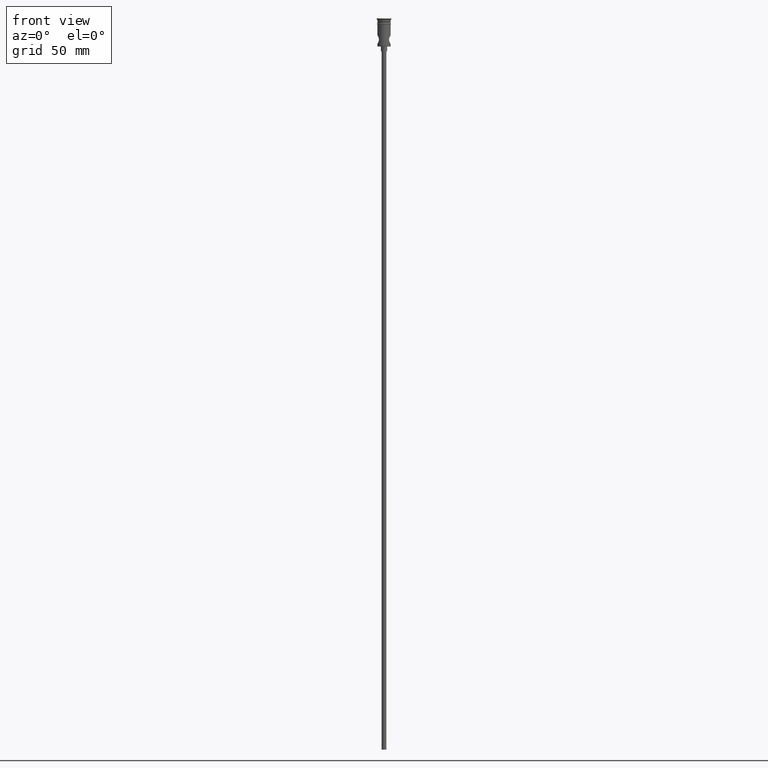
[diagram: clean part render]
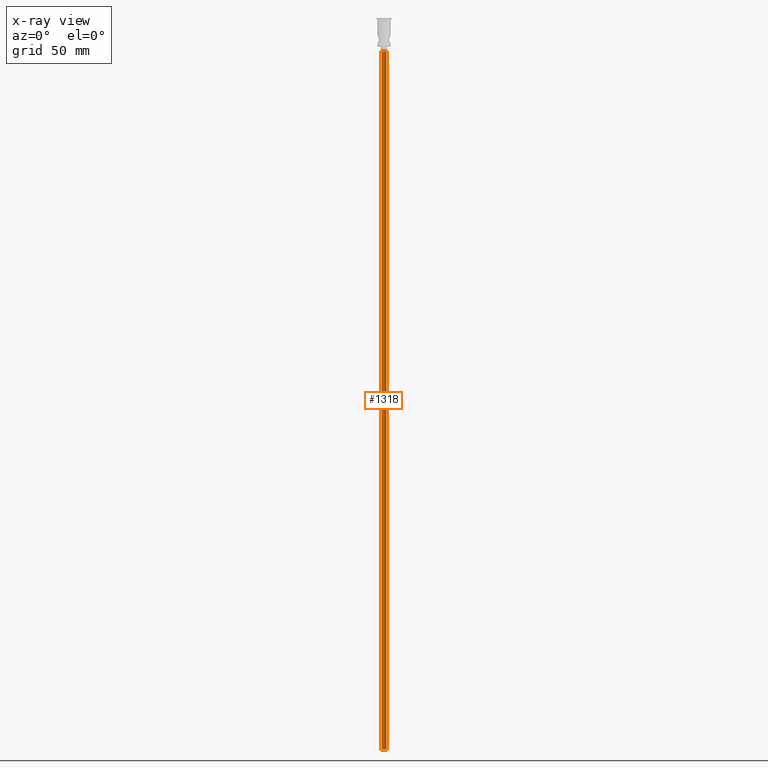
[diagram: x-ray — body ghosted, one internal face saturated and labeled with its STEP entity id]
A machine part, front view, then the same camera in x-ray: the body is ghosted and one INTERNAL B-rep face — a face not visible from any outside direction — is saturated and labeled: STEP entity #1318.
In plain terms, the highlighted cylindrical surface (edge-blend (fillet) strip) has radius 1.5 mm, axis along (-0, -0, 1).
Its self-contained STEP definition (entity closure, byte-faithful):
#7 = VECTOR ( 'NONE', #1172, 1000.000000000000000 ) ;
#35 = DIRECTION ( 'NONE',  ( -0.000000000000000000, -0.000000000000000000, 1.000000000000000000 ) ) ;
#39 = DIRECTION ( 'NONE',  ( 0.000000000000000000, 0.000000000000000000, -1.000000000000000000 ) ) ;
#43 = FACE_OUTER_BOUND ( 'NONE', #878, .T. ) ;
#144 = AXIS2_PLACEMENT_3D ( 'NONE', #1102, #444, #1324 ) ;
#152 = CARTESIAN_POINT ( 'NONE',  ( 1.500000000000000222, 0.000000000000000000, -20.99999999999999645 ) ) ;
#176 = DIRECTION ( 'NONE',  ( -0.000000000000000000, -0.000000000000000000, 1.000000000000000000 ) ) ;
#177 = CARTESIAN_POINT ( 'NONE',  ( 1.500000000000000222, 0.000000000000000000, -468.0000000000000000 ) ) ;
#184 = CIRCLE ( 'NONE', #144, 1.500000000000000222 ) ;
#291 = VERTEX_POINT ( 'NONE', #727 ) ;
#349 = VERTEX_POINT ( 'NONE', #873 ) ;
#444 = DIRECTION ( 'NONE',  ( 0.000000000000000000, 0.000000000000000000, -1.000000000000000000 ) ) ;
#447 = EDGE_CURVE ( 'NONE', #291, #1374, #914, .T. ) ;
#489 = EDGE_CURVE ( 'NONE', #291, #349, #947, .T. ) ;
#529 = DIRECTION ( 'NONE',  ( 1.000000000000000000, 0.000000000000000000, 0.000000000000000000 ) ) ;
#551 = EDGE_CURVE ( 'NONE', #349, #1320, #184, .T. ) ;
#552 = ORIENTED_EDGE ( 'NONE', *, *, #489, .T. ) ;
#722 = CARTESIAN_POINT ( 'NONE',  ( 0.000000000000000000, 0.000000000000000000, -468.0000000000000000 ) ) ;
#727 = CARTESIAN_POINT ( 'NONE',  ( -1.500000000000000222, 1.836970198721030181E-16, -468.0000000000000000 ) ) ;
#738 = CARTESIAN_POINT ( 'NONE',  ( 0.000000000000000000, 0.000000000000000000, -468.0000000000000000 ) ) ;
#739 = CYLINDRICAL_SURFACE ( 'NONE', #1053, 1.500000000000000222 ) ;
#745 = ORIENTED_EDGE ( 'NONE', *, *, #447, .F. ) ;
#801 = AXIS2_PLACEMENT_3D ( 'NONE', #738, #39, #1403 ) ;
#827 = LINE ( 'NONE', #951, #7 ) ;
#873 = CARTESIAN_POINT ( 'NONE',  ( -1.500000000000000222, 1.836970198721030181E-16, -20.99999999999999645 ) ) ;
#878 = EDGE_LOOP ( 'NONE', ( #745, #552, #1411, #1199 ) ) ;
#914 = CIRCLE ( 'NONE', #801, 1.500000000000000222 ) ;
#947 = LINE ( 'NONE', #1170, #1121 ) ;
#951 = CARTESIAN_POINT ( 'NONE',  ( 1.500000000000000222, 0.000000000000000000, -468.0000000000000000 ) ) ;
#1053 = AXIS2_PLACEMENT_3D ( 'NONE', #722, #35, #529 ) ;
#1102 = CARTESIAN_POINT ( 'NONE',  ( 0.000000000000000000, 0.000000000000000000, -20.99999999999999645 ) ) ;
#1121 = VECTOR ( 'NONE', #176, 1000.000000000000000 ) ;
#1170 = CARTESIAN_POINT ( 'NONE',  ( -1.500000000000000222, 1.836970198721030181E-16, -468.0000000000000000 ) ) ;
#1172 = DIRECTION ( 'NONE',  ( -0.000000000000000000, -0.000000000000000000, 1.000000000000000000 ) ) ;
#1199 = ORIENTED_EDGE ( 'NONE', *, *, #1363, .F. ) ;
#1318 = ADVANCED_FACE ( 'NONE', ( #43 ), #739, .T. ) ;
#1320 = VERTEX_POINT ( 'NONE', #152 ) ;
#1324 = DIRECTION ( 'NONE',  ( -1.000000000000000000, 0.000000000000000000, 0.000000000000000000 ) ) ;
#1363 = EDGE_CURVE ( 'NONE', #1374, #1320, #827, .T. ) ;
#1374 = VERTEX_POINT ( 'NONE', #177 ) ;
#1403 = DIRECTION ( 'NONE',  ( -1.000000000000000000, 0.000000000000000000, 0.000000000000000000 ) ) ;
#1411 = ORIENTED_EDGE ( 'NONE', *, *, #551, .T. ) ;